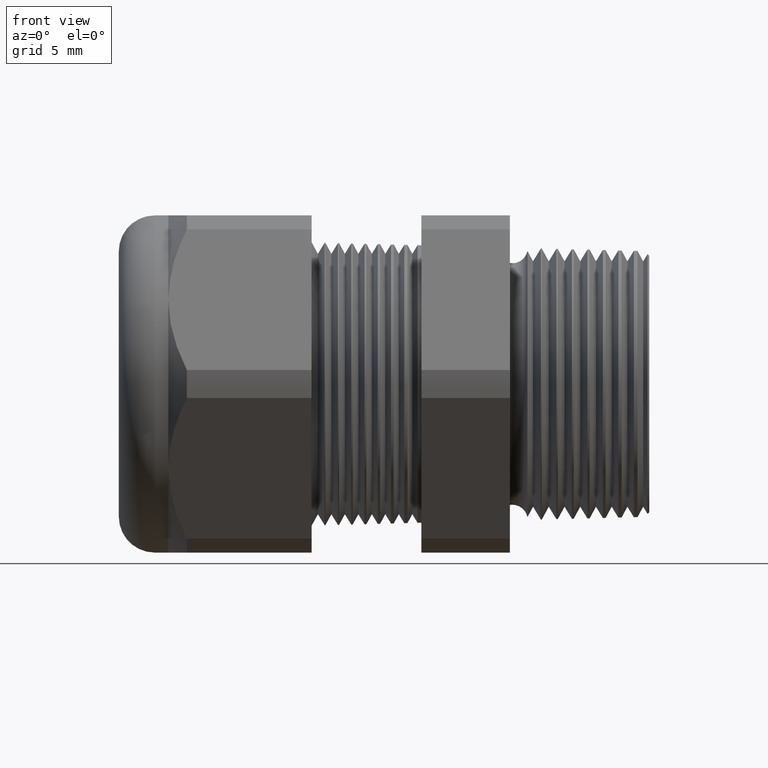
[diagram: clean part render]
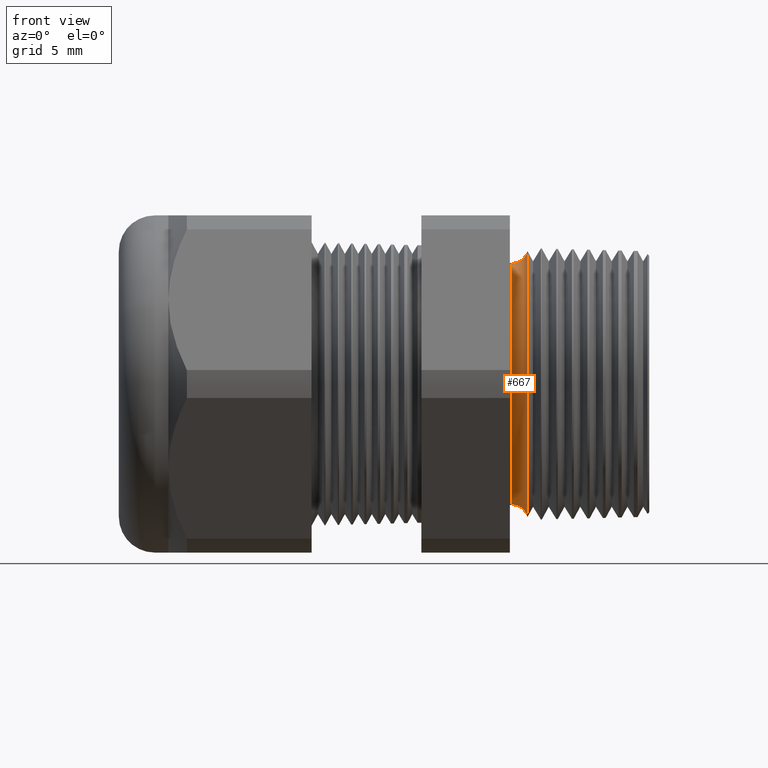
[diagram: same view with one face highlighted and labeled with its STEP entity id]
A machine part, front view. The second image highlights one B-rep face of the part: STEP entity #667.
In plain terms, the highlighted toroidal blend (fillet) surface has major radius 7.7078 mm and minor (blend) radius 0.889 mm.
Its self-contained STEP definition (entity closure, byte-faithful):
#618 = EDGE_CURVE ( 'NONE', #664, #671, #2390, .T. ) ;
#621 = ORIENTED_EDGE ( 'NONE', *, *, #618, .F. ) ;
#622 = ORIENTED_EDGE ( 'NONE', *, *, #670, .F. ) ;
#623 = ORIENTED_EDGE ( 'NONE', *, *, #663, .T. ) ;
#624 = ORIENTED_EDGE ( 'NONE', *, *, #625, .T. ) ;
#625 = EDGE_CURVE ( 'NONE', #674, #672, #2379, .T. ) ;
#663 = EDGE_CURVE ( 'NONE', #664, #674, #2461, .T. ) ;
#664 = VERTEX_POINT ( 'NONE', #2456 ) ;
#667 = ADVANCED_FACE ( 'NONE', ( #2455 ), #2448, .F. ) ;
#668 = EDGE_LOOP ( 'NONE', ( #623, #624, #622, #621 ) ) ;
#670 = EDGE_CURVE ( 'NONE', #671, #672, #2444, .T. ) ;
#671 = VERTEX_POINT ( 'NONE', #2439 ) ;
#672 = VERTEX_POINT ( 'NONE', #2438 ) ;
#674 = VERTEX_POINT ( 'NONE', #2437 ) ;
#2376 = DIRECTION ( 'NONE',  ( 0.0000000000000000000, 0.0000000000000000000, -1.000000000000000000 ) ) ;
#2377 = DIRECTION ( 'NONE',  ( 1.000000000000000000, 0.0000000000000000000, 0.0000000000000000000 ) ) ;
#2378 = AXIS2_PLACEMENT_3D ( 'NONE', #2384, #2377, #2376 ) ;
#2379 = CIRCLE ( 'NONE', #2378, 0.2684555137900915300 ) ;
#2384 = CARTESIAN_POINT ( 'NONE',  ( -0.3049999999999999400, 0.0000000000000000000, 0.0000000000000000000 ) ) ;
#2387 = DIRECTION ( 'NONE',  ( 0.0000000000000000000, 0.0000000000000000000, 1.000000000000000000 ) ) ;
#2388 = DIRECTION ( 'NONE',  ( 1.000000000000000000, 0.0000000000000000000, 0.0000000000000000000 ) ) ;
#2389 = AXIS2_PLACEMENT_3D ( 'NONE', #2395, #2388, #2387 ) ;
#2390 = CIRCLE ( 'NONE', #2389, 0.2958053544276990100 ) ;
#2395 = CARTESIAN_POINT ( 'NONE',  ( -0.2708463023710465100, 0.0000000000000000000, 0.0000000000000000000 ) ) ;
#2437 = CARTESIAN_POINT ( 'NONE',  ( -0.3049999999999999400, 3.287631856764937300E-017, 0.2684555137900915300 ) ) ;
#2438 = CARTESIAN_POINT ( 'NONE',  ( -0.3049999999999999400, 0.0000000000000000000, -0.2684555137900915300 ) ) ;
#2439 = CARTESIAN_POINT ( 'NONE',  ( -0.2708463023710465100, 3.622570804705299400E-017, -0.2958053544276990100 ) ) ;
#2440 = DIRECTION ( 'NONE',  ( 0.0000000000000000000, 0.0000000000000000000, -1.000000000000000000 ) ) ;
#2441 = DIRECTION ( 'NONE',  ( 0.0000000000000000000, -1.000000000000000000, 0.0000000000000000000 ) ) ;
#2442 = CARTESIAN_POINT ( 'NONE',  ( -0.3049999999999999400, 0.0000000000000000000, -0.3034555137900915000 ) ) ;
#2443 = AXIS2_PLACEMENT_3D ( 'NONE', #2442, #2441, #2440 ) ;
#2444 = CIRCLE ( 'NONE', #2443, 0.03499999999999996900 ) ;
#2445 = DIRECTION ( 'NONE',  ( 0.0000000000000000000, 0.0000000000000000000, -1.000000000000000000 ) ) ;
#2446 = DIRECTION ( 'NONE',  ( 1.000000000000000000, 0.0000000000000000000, 0.0000000000000000000 ) ) ;
#2447 = AXIS2_PLACEMENT_3D ( 'NONE', #2449, #2446, #2445 ) ;
#2448 = TOROIDAL_SURFACE ( 'NONE', #2447, 0.3034555137900915000, 0.03499999999999994800 ) ;
#2449 = CARTESIAN_POINT ( 'NONE',  ( -0.3049999999999999400, 0.0000000000000000000, 0.0000000000000000000 ) ) ;
#2455 = FACE_OUTER_BOUND ( 'NONE', #668, .T. ) ;
#2456 = CARTESIAN_POINT ( 'NONE',  ( -0.2708463023710465100, 0.0000000000000000000, 0.2958053544276990100 ) ) ;
#2457 = DIRECTION ( 'NONE',  ( 0.0000000000000000000, 1.224646799147352700E-016, 1.000000000000000000 ) ) ;
#2458 = DIRECTION ( 'NONE',  ( 0.0000000000000000000, 1.000000000000000000, -1.224646799147353200E-016 ) ) ;
#2459 = CARTESIAN_POINT ( 'NONE',  ( -0.3049999999999999400, 3.716258236466510600E-017, 0.3034555137900915000 ) ) ;
#2460 = AXIS2_PLACEMENT_3D ( 'NONE', #2459, #2458, #2457 ) ;
#2461 = CIRCLE ( 'NONE', #2460, 0.03499999999999996900 ) ;